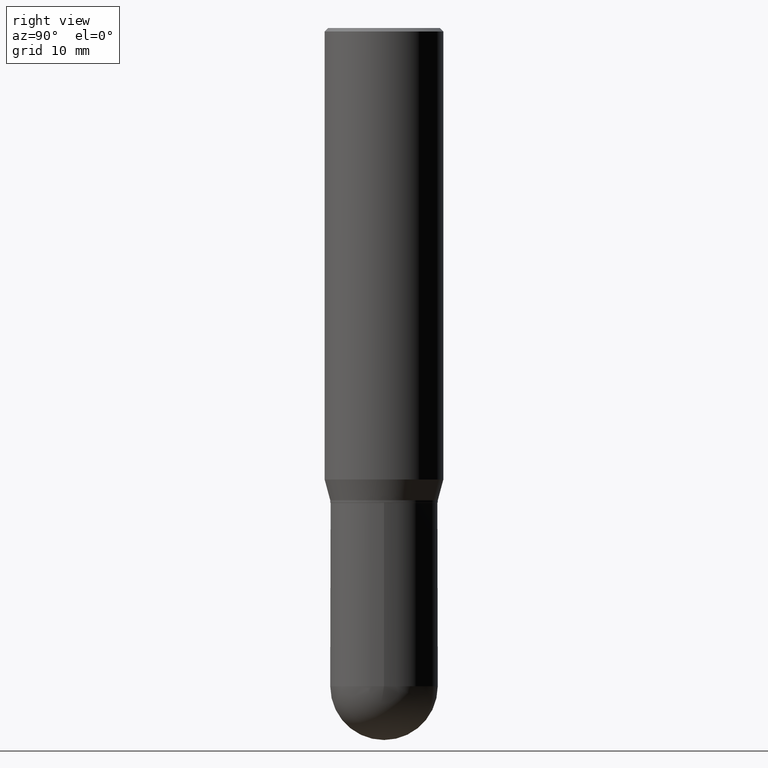
[diagram: clean part render]
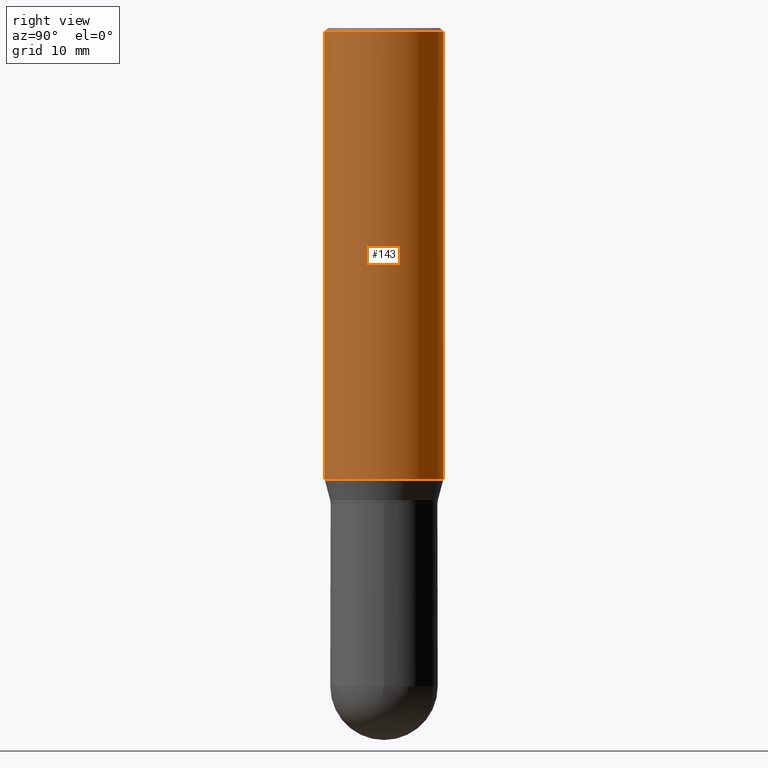
[diagram: same view with one face highlighted and labeled with its STEP entity id]
A machine part, right view. The second image highlights one B-rep face of the part: STEP entity #143.
In plain terms, the highlighted cylindrical surface (partial cylindrical patch) has radius 6.35 mm, axis along (-0, 0, 1).
Its self-contained STEP definition (entity closure, byte-faithful):
#11 = CARTESIAN_POINT ( 'NONE',  ( 1.776356839400296613E-15, 0.2499999999999933664, -1.902483408562511302 ) ) ;
#30 = DIRECTION ( 'NONE',  ( -6.982962677686265922E-15, -1.000000000000000000, 3.491643216902136408E-15 ) ) ;
#31 = VERTEX_POINT ( 'NONE', #278 ) ;
#34 = VERTEX_POINT ( 'NONE', #431 ) ;
#47 = ORIENTED_EDGE ( 'NONE', *, *, #169, .T. ) ;
#69 = ORIENTED_EDGE ( 'NONE', *, *, #438, .F. ) ;
#81 = DIRECTION ( 'NONE',  ( -2.445744433736275224E-29, 3.491086624502168728E-15, 1.000000000000000000 ) ) ;
#100 = CARTESIAN_POINT ( 'NONE',  ( 0.000000000000000000, 0.000000000000000000, 0.000000000000000000 ) ) ;
#116 = EDGE_CURVE ( 'NONE', #426, #240, #128, .T. ) ;
#128 = LINE ( 'NONE', #350, #151 ) ;
#136 = DIRECTION ( 'NONE',  ( -6.982962677686265922E-15, -1.000000000000000000, 3.491086624502169122E-15 ) ) ;
#143 = ADVANCED_FACE ( 'NONE', ( #455 ), #452, .T. ) ;
#144 = CARTESIAN_POINT ( 'NONE',  ( 4.652988206767375455E-29, -6.641734380969875246E-15, -1.902483408562510414 ) ) ;
#151 = VECTOR ( 'NONE', #81, 39.37007874015748143 ) ;
#169 = EDGE_CURVE ( 'NONE', #34, #426, #448, .T. ) ;
#181 = CIRCLE ( 'NONE', #213, 0.2500000000000000000 ) ;
#185 = AXIS2_PLACEMENT_3D ( 'NONE', #144, #289, #412 ) ;
#196 = CARTESIAN_POINT ( 'NONE',  ( 3.668616650604456329E-31, -5.236629936753315584E-17, -0.01500000000000017986 ) ) ;
#213 = AXIS2_PLACEMENT_3D ( 'NONE', #196, #261, #30 ) ;
#240 = VERTEX_POINT ( 'NONE', #510 ) ;
#261 = DIRECTION ( 'NONE',  ( -2.445744433736275224E-29, 3.491086624502169122E-15, 1.000000000000000000 ) ) ;
#277 = EDGE_LOOP ( 'NONE', ( #47, #401, #512, #69 ) ) ;
#278 = CARTESIAN_POINT ( 'NONE',  ( -1.745740669421565889E-15, -0.2500000000000000555, -0.01499999999999930729 ) ) ;
#289 = DIRECTION ( 'NONE',  ( -2.445744433736275224E-29, 3.491086624502169122E-15, 1.000000000000000000 ) ) ;
#313 = DIRECTION ( 'NONE',  ( -2.445744433736275224E-29, 3.491086624502168728E-15, 1.000000000000000000 ) ) ;
#318 = CARTESIAN_POINT ( 'NONE',  ( -1.745740669421566480E-15, -0.2500000000000000000, 8.727716561255422806E-16 ) ) ;
#350 = CARTESIAN_POINT ( 'NONE',  ( 1.776356839400250267E-15, 0.2500000000000000000, -8.727716561255422806E-16 ) ) ;
#364 = LINE ( 'NONE', #318, #368 ) ;
#365 = EDGE_CURVE ( 'NONE', #31, #240, #181, .T. ) ;
#368 = VECTOR ( 'NONE', #313, 39.37007874015748143 ) ;
#401 = ORIENTED_EDGE ( 'NONE', *, *, #116, .T. ) ;
#406 = DIRECTION ( 'NONE',  ( -2.445744433736275224E-29, 3.491086624502169122E-15, 1.000000000000000000 ) ) ;
#412 = DIRECTION ( 'NONE',  ( -6.982962677686265922E-15, -1.000000000000000000, 3.278217592397115862E-15 ) ) ;
#426 = VERTEX_POINT ( 'NONE', #11 ) ;
#429 = AXIS2_PLACEMENT_3D ( 'NONE', #100, #406, #136 ) ;
#431 = CARTESIAN_POINT ( 'NONE',  ( -1.745740669421519543E-15, -0.2500000000000066058, -1.902483408562509748 ) ) ;
#438 = EDGE_CURVE ( 'NONE', #34, #31, #364, .T. ) ;
#448 = CIRCLE ( 'NONE', #185, 0.2500000000000000000 ) ;
#452 = CYLINDRICAL_SURFACE ( 'NONE', #429, 0.2500000000000000000 ) ;
#455 = FACE_OUTER_BOUND ( 'NONE', #277, .T. ) ;
#510 = CARTESIAN_POINT ( 'NONE',  ( 1.776356839400297007E-15, 0.2499999999999999167, -0.01500000000000105242 ) ) ;
#512 = ORIENTED_EDGE ( 'NONE', *, *, #365, .F. ) ;